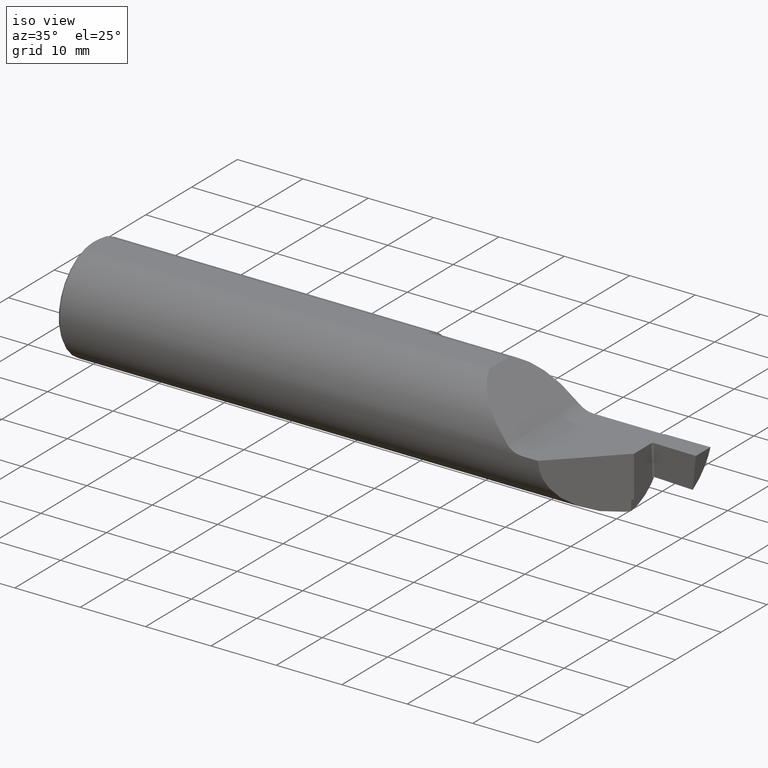
[diagram: clean part render]
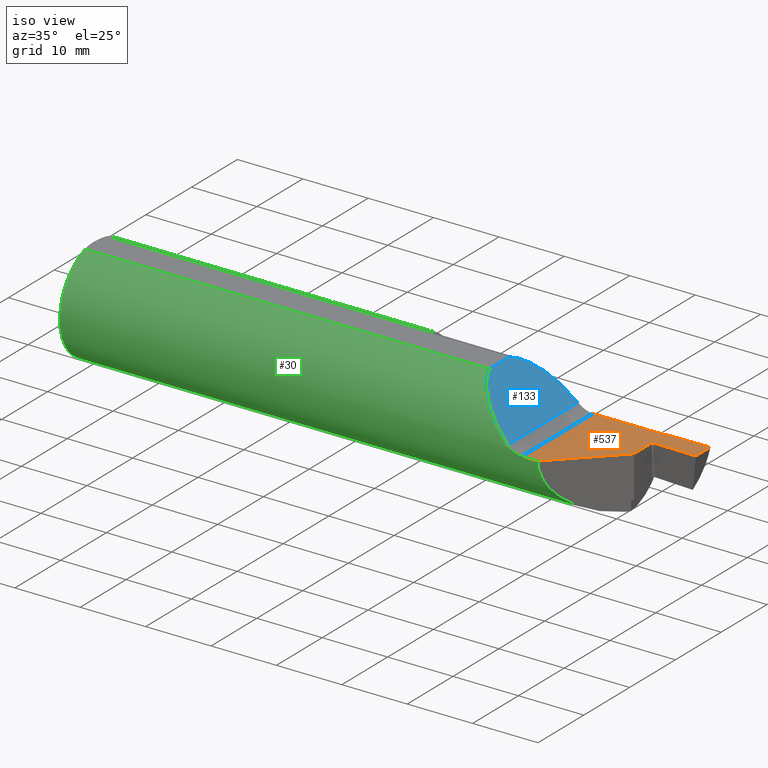
[diagram: same view with three faces highlighted in distinct colors, each labeled with its STEP entity id]
A machine part, iso view with three faces highlighted in distinct colors.
Their STEP definitions:

[orange] entity #537 — the highlighted planar face has unit normal (0, 0, -1).
#10 = ORIENTED_EDGE ( 'NONE', *, *, #858, .T. ) ;
#14 = VECTOR ( 'NONE', #387, 39.37007874015748143 ) ;
#18 = LINE ( 'NONE', #226, #360 ) ;
#34 = ORIENTED_EDGE ( 'NONE', *, *, #381, .T. ) ;
#43 = VECTOR ( 'NONE', #656, 39.37007874015748143 ) ;
#46 = LINE ( 'NONE', #287, #151 ) ;
#69 = VERTEX_POINT ( 'NONE', #105 ) ;
#105 = CARTESIAN_POINT ( 'NONE',  ( 2.799776695296631868, -0.3123499999999999610, 0.000000000000000000 ) ) ;
#114 = DIRECTION ( 'NONE',  ( -1.000000000000000000, 0.000000000000000000, -0.000000000000000000 ) ) ;
#122 = DIRECTION ( 'NONE',  ( -1.000000000000000000, -0.000000000000000000, -0.000000000000000000 ) ) ;
#151 = VECTOR ( 'NONE', #837, 39.37007874015748143 ) ;
#185 = VERTEX_POINT ( 'NONE', #780 ) ;
#191 = CARTESIAN_POINT ( 'NONE',  ( 3.245000000000000107, 0.1757987566360347254, 0.000000000000000000 ) ) ;
#205 = EDGE_CURVE ( 'NONE', #538, #441, #300, .T. ) ;
#224 = ORIENTED_EDGE ( 'NONE', *, *, #430, .T. ) ;
#226 = CARTESIAN_POINT ( 'NONE',  ( 2.772499999999999076, -0.4348499999999991261, 0.000000000000000000 ) ) ;
#243 = LINE ( 'NONE', #373, #14 ) ;
#263 = CARTESIAN_POINT ( 'NONE',  ( 1.960000000000000409, 0.2973492383597805544, 0.000000000000000000 ) ) ;
#267 = VERTEX_POINT ( 'NONE', #920 ) ;
#274 = LINE ( 'NONE', #787, #771 ) ;
#287 = CARTESIAN_POINT ( 'NONE',  ( 3.234999999999999876, -0.4123500000000000498, 0.000000000000000000 ) ) ;
#300 = CIRCLE ( 'NONE', #801, 0.008000000000000024453 ) ;
#321 = LINE ( 'NONE', #760, #886 ) ;
#326 = DIRECTION ( 'NONE',  ( 0.000000000000000000, 0.000000000000000000, -1.000000000000000000 ) ) ;
#341 = CARTESIAN_POINT ( 'NONE',  ( 2.750000000000000000, -0.4123500000000000498, 0.000000000000000000 ) ) ;
#347 = DIRECTION ( 'NONE',  ( -1.000000000000000000, 0.000000000000000000, 0.000000000000000000 ) ) ;
#352 = CARTESIAN_POINT ( 'NONE',  ( 2.799776695296631868, 0.2973492383597806654, -1.707404996040164512E-17 ) ) ;
#360 = VECTOR ( 'NONE', #510, 39.37007874015748854 ) ;
#371 = CIRCLE ( 'NONE', #456, 0.01000000000000016674 ) ;
#373 = CARTESIAN_POINT ( 'NONE',  ( 3.500000000000000000, -0.4123500000000000498, 0.000000000000000000 ) ) ;
#376 = VERTEX_POINT ( 'NONE', #586 ) ;
#378 = EDGE_CURVE ( 'NONE', #621, #69, #874, .T. ) ;
#381 = EDGE_CURVE ( 'NONE', #663, #376, #18, .T. ) ;
#387 = DIRECTION ( 'NONE',  ( 0.000000000000000000, 1.000000000000000000, 0.000000000000000000 ) ) ;
#402 = FACE_OUTER_BOUND ( 'NONE', #683, .T. ) ;
#414 = DIRECTION ( 'NONE',  ( -1.000000000000000000, 8.537024980200796575E-15, 0.000000000000000000 ) ) ;
#430 = EDGE_CURVE ( 'NONE', #501, #185, #243, .T. ) ;
#441 = VERTEX_POINT ( 'NONE', #451 ) ;
#451 = CARTESIAN_POINT ( 'NONE',  ( 3.229522971668060460, 0.3026280442686590799, 2.048885995248197414E-16 ) ) ;
#453 = LINE ( 'NONE', #515, #43 ) ;
#456 = AXIS2_PLACEMENT_3D ( 'NONE', #191, #852, #347 ) ;
#459 = CARTESIAN_POINT ( 'NONE',  ( 3.500000000000000444, 0.1813492383597804791, 0.000000000000000000 ) ) ;
#485 = ORIENTED_EDGE ( 'NONE', *, *, #205, .F. ) ;
#501 = VERTEX_POINT ( 'NONE', #459 ) ;
#502 = VECTOR ( 'NONE', #897, 39.37007874015748143 ) ;
#510 = DIRECTION ( 'NONE',  ( 0.7071067811865487940, 0.7071067811865461294, 0.000000000000000000 ) ) ;
#515 = CARTESIAN_POINT ( 'NONE',  ( 3.780044616675974911, 0.3122374353266534897, 1.707404996040164512E-17 ) ) ;
#521 = DIRECTION ( 'NONE',  ( 0.000000000000000000, -1.000000000000000000, 0.000000000000000000 ) ) ;
#537 = ADVANCED_FACE ( 'NONE', ( #402 ), #685, .F. ) ;
#538 = VERTEX_POINT ( 'NONE', #889 ) ;
#539 = DIRECTION ( 'NONE',  ( 0.9998476951563912696, -0.01745240643727517804, 0.000000000000000000 ) ) ;
#569 = EDGE_CURVE ( 'NONE', #621, #538, #615, .T. ) ;
#582 = CARTESIAN_POINT ( 'NONE',  ( 2.799776695296631868, -0.4123500000000000498, 0.000000000000000000 ) ) ;
#586 = CARTESIAN_POINT ( 'NONE',  ( 3.234999999999999876, 0.02765000000000004607, 0.000000000000000000 ) ) ;
#590 = CARTESIAN_POINT ( 'NONE',  ( 3.245174524064372790, 0.1857972335875986702, -1.814117808292674871E-17 ) ) ;
#615 = LINE ( 'NONE', #263, #502 ) ;
#621 = VERTEX_POINT ( 'NONE', #352 ) ;
#656 = DIRECTION ( 'NONE',  ( 0.9998476951563914916, 0.01745240643726934937, 0.000000000000000000 ) ) ;
#662 = EDGE_CURVE ( 'NONE', #267, #826, #371, .T. ) ;
#663 = VERTEX_POINT ( 'NONE', #842 ) ;
#672 = EDGE_CURVE ( 'NONE', #376, #267, #46, .T. ) ;
#675 = EDGE_CURVE ( 'NONE', #663, #69, #274, .T. ) ;
#679 = AXIS2_PLACEMENT_3D ( 'NONE', #341, #326, #114 ) ;
#683 = EDGE_LOOP ( 'NONE', ( #485, #839, #712, #786, #34, #707, #834, #10, #224, #899 ) ) ;
#685 = PLANE ( 'NONE',  #679 ) ;
#707 = ORIENTED_EDGE ( 'NONE', *, *, #672, .T. ) ;
#712 = ORIENTED_EDGE ( 'NONE', *, *, #378, .T. ) ;
#760 = CARTESIAN_POINT ( 'NONE',  ( 2.760588342173541321, 0.1942557168558162461, 0.000000000000000000 ) ) ;
#771 = VECTOR ( 'NONE', #122, 39.37007874015748143 ) ;
#773 = CARTESIAN_POINT ( 'NONE',  ( 3.221999999999999531, 0.3053492383597806725, 0.000000000000000000 ) ) ;
#780 = CARTESIAN_POINT ( 'NONE',  ( 3.500000000000000000, 0.3073492383597807298, 9.134616728814879582E-16 ) ) ;
#786 = ORIENTED_EDGE ( 'NONE', *, *, #675, .F. ) ;
#787 = CARTESIAN_POINT ( 'NONE',  ( 0.000000000000000000, -0.3123499999999999610, 0.000000000000000000 ) ) ;
#801 = AXIS2_PLACEMENT_3D ( 'NONE', #773, #844, #414 ) ;
#826 = VERTEX_POINT ( 'NONE', #590 ) ;
#828 = EDGE_CURVE ( 'NONE', #441, #185, #453, .T. ) ;
#834 = ORIENTED_EDGE ( 'NONE', *, *, #662, .T. ) ;
#837 = DIRECTION ( 'NONE',  ( 0.000000000000000000, 1.000000000000000000, 0.000000000000000000 ) ) ;
#839 = ORIENTED_EDGE ( 'NONE', *, *, #569, .F. ) ;
#842 = CARTESIAN_POINT ( 'NONE',  ( 2.894999999999998685, -0.3123499999999999610, 0.000000000000000000 ) ) ;
#844 = DIRECTION ( 'NONE',  ( -0.000000000000000000, -0.000000000000000000, 1.000000000000000000 ) ) ;
#852 = DIRECTION ( 'NONE',  ( 0.000000000000000000, 0.000000000000000000, -1.000000000000000000 ) ) ;
#858 = EDGE_CURVE ( 'NONE', #826, #501, #321, .T. ) ;
#874 = LINE ( 'NONE', #582, #917 ) ;
#886 = VECTOR ( 'NONE', #539, 39.37007874015748854 ) ;
#889 = CARTESIAN_POINT ( 'NONE',  ( 3.221999999999999531, 0.2973492383597806099, 0.000000000000000000 ) ) ;
#897 = DIRECTION ( 'NONE',  ( 1.000000000000000000, 0.000000000000000000, 0.000000000000000000 ) ) ;
#899 = ORIENTED_EDGE ( 'NONE', *, *, #828, .F. ) ;
#917 = VECTOR ( 'NONE', #521, 39.37007874015748143 ) ;
#920 = CARTESIAN_POINT ( 'NONE',  ( 3.234999999999999876, 0.1757987566360347254, 0.000000000000000000 ) ) ;

[blue] entity #133 — the highlighted planar face has unit normal (0.7071, -0, 0.7071).
#11 = VERTEX_POINT ( 'NONE', #580 ) ;
#17 = LINE ( 'NONE', #331, #753 ) ;
#41 = FACE_OUTER_BOUND ( 'NONE', #809, .T. ) ;
#126 = CARTESIAN_POINT ( 'NONE',  ( 2.449649999999997885, -0.09246512856206932918, 0.2983500000000000041 ) ) ;
#133 = ADVANCED_FACE ( 'NONE', ( #41 ), #328, .T. ) ;
#180 = ORIENTED_EDGE ( 'NONE', *, *, #843, .T. ) ;
#210 = VERTEX_POINT ( 'NONE', #555 ) ;
#258 = DIRECTION ( 'NONE',  ( -0.000000000000000000, 1.000000000000000000, -0.000000000000000000 ) ) ;
#276 = ORIENTED_EDGE ( 'NONE', *, *, #906, .T. ) ;
#278 =( BOUNDED_CURVE ( )  B_SPLINE_CURVE ( 3, ( #669, #817, #467, #896 ),
 .UNSPECIFIED., .F., .T. ) 
 B_SPLINE_CURVE_WITH_KNOTS ( ( 4, 4 ),
 ( 4.829815950483568265, 5.981106177898003473 ),
 .UNSPECIFIED. ) 
 CURVE ( )  GEOMETRIC_REPRESENTATION_ITEM ( )  RATIONAL_B_SPLINE_CURVE ( ( 1.000000000000000000, 0.8925608616953475405, 0.8925608616953475405, 1.000000000000000000 ) ) 
 REPRESENTATION_ITEM ( '' )  );
#286 = AXIS2_PLACEMENT_3D ( 'NONE', #902, #608, #820 ) ;
#293 = VERTEX_POINT ( 'NONE', #492 ) ;
#312 = ORIENTED_EDGE ( 'NONE', *, *, #648, .F. ) ;
#328 = PLANE ( 'NONE',  #286 ) ;
#331 = CARTESIAN_POINT ( 'NONE',  ( 2.711388347648313157, 0.4123500000000000498, 0.03661165235168205301 ) ) ;
#420 = ORIENTED_EDGE ( 'NONE', *, *, #581, .F. ) ;
#467 = CARTESIAN_POINT ( 'NONE',  ( 2.487452056093010455, 0.1991296308314487729, 0.2605479439069872671 ) ) ;
#475 = LINE ( 'NONE', #478, #545 ) ;
#478 = CARTESIAN_POINT ( 'NONE',  ( 2.449649999999997885, 0.09246512856206932918, 0.2983500000000000041 ) ) ;
#482 = DIRECTION ( 'NONE',  ( -0.000000000000000000, 1.000000000000000000, 0.000000000000000000 ) ) ;
#492 = CARTESIAN_POINT ( 'NONE',  ( 2.711388347648312713, 0.2951971671624062377, 0.03661165235168226811 ) ) ;
#503 =( BOUNDED_CURVE ( )  B_SPLINE_CURVE ( 3, ( #848, #632, #643, #126 ),
 .UNSPECIFIED., .F., .T. ) 
 B_SPLINE_CURVE_WITH_KNOTS ( ( 4, 4 ),
 ( 4.829872603322638902, 5.982651106322981249 ),
 .UNSPECIFIED. ) 
 CURVE ( )  GEOMETRIC_REPRESENTATION_ITEM ( )  RATIONAL_B_SPLINE_CURVE ( ( 1.000000000000000000, 0.8922906463574401537, 0.8922906463574401537, 1.000000000000000000 ) ) 
 REPRESENTATION_ITEM ( '' )  );
#545 = VECTOR ( 'NONE', #482, 39.37007874015748143 ) ;
#555 = CARTESIAN_POINT ( 'NONE',  ( 2.449649999999997885, 0.07781981166122887983, 0.2983500000000000041 ) ) ;
#580 = CARTESIAN_POINT ( 'NONE',  ( 2.711388347648313157, -0.3101968881405479106, 0.03661165235168183096 ) ) ;
#581 = EDGE_CURVE ( 'NONE', #609, #210, #475, .T. ) ;
#608 = DIRECTION ( 'NONE',  ( 0.7071067811865511255, -0.000000000000000000, 0.7071067811865439090 ) ) ;
#609 = VERTEX_POINT ( 'NONE', #782 ) ;
#632 = CARTESIAN_POINT ( 'NONE',  ( 2.585078726976065333, -0.2952889245292886766, 0.1629212730239304185 ) ) ;
#643 = CARTESIAN_POINT ( 'NONE',  ( 2.487301039583585283, -0.2139507938550457289, 0.2606989604164116070 ) ) ;
#648 = EDGE_CURVE ( 'NONE', #11, #609, #503, .T. ) ;
#669 = CARTESIAN_POINT ( 'NONE',  ( 2.711388347648312713, 0.2951971671624062377, 0.03661165235168226811 ) ) ;
#753 = VECTOR ( 'NONE', #258, 39.37007874015748143 ) ;
#782 = CARTESIAN_POINT ( 'NONE',  ( 2.449649999999997885, -0.09246512856206932918, 0.2983500000000000041 ) ) ;
#809 = EDGE_LOOP ( 'NONE', ( #276, #180, #420, #312 ) ) ;
#817 = CARTESIAN_POINT ( 'NONE',  ( 2.585200142108180721, 0.2803107822912631053, 0.1627998578918156414 ) ) ;
#820 = DIRECTION ( 'NONE',  ( 0.7071067811865439090, 0.000000000000000000, -0.7071067811865511255 ) ) ;
#843 = EDGE_CURVE ( 'NONE', #293, #210, #278, .T. ) ;
#848 = CARTESIAN_POINT ( 'NONE',  ( 2.711388347648313157, -0.3101968881405479106, 0.03661165235168183096 ) ) ;
#896 = CARTESIAN_POINT ( 'NONE',  ( 2.449649999999997885, 0.07781981166122887983, 0.2983500000000000041 ) ) ;
#902 = CARTESIAN_POINT ( 'NONE',  ( 2.750000000000000000, 0.4123500000000000498, -0.002000000000005264927 ) ) ;
#906 = EDGE_CURVE ( 'NONE', #11, #293, #17, .T. ) ;

[green] entity #30 — the highlighted cylindrical surface (partial cylindrical patch) has radius 7.9337 mm, axis along (-1, -0, -0).
#4 = CARTESIAN_POINT ( 'NONE',  ( 0.01499999999999587948, -0.09246512856207692033, 0.2983500000000000041 ) ) ;
#11 = VERTEX_POINT ( 'NONE', #580 ) ;
#15 = VERTEX_POINT ( 'NONE', #234 ) ;
#16 = CIRCLE ( 'NONE', #153, 0.3123500000000000165 ) ;
#30 = ADVANCED_FACE ( 'NONE', ( #154 ), #87, .T. ) ;
#40 = CARTESIAN_POINT ( 'NONE',  ( 1.960368899908756068, 0.1101505059355021715, -0.2926523065932738477 ) ) ;
#56 = CARTESIAN_POINT ( 'NONE',  ( 1.960000000000000409, 0.1408597388205671819, 0.2799495959404788570 ) ) ;
#63 = DIRECTION ( 'NONE',  ( 1.000000000000000000, 0.000000000000000000, 0.000000000000000000 ) ) ;
#68 = CARTESIAN_POINT ( 'NONE',  ( 2.894999999999998685, -0.3123499999999999610, 0.000000000000000000 ) ) ;
#69 = VERTEX_POINT ( 'NONE', #105 ) ;
#83 = CARTESIAN_POINT ( 'NONE',  ( 1.966409111413173871, -0.001273356502921675019, -0.3123486698802878103 ) ) ;
#87 = CYLINDRICAL_SURFACE ( 'NONE', #695, 0.3123500000000000165 ) ;
#89 = CARTESIAN_POINT ( 'NONE',  ( 1.966216365614061878, -0.0003701974552680141581, -0.3123510986899081798 ) ) ;
#94 = CARTESIAN_POINT ( 'NONE',  ( 1.960609346587106394, 0.09615431653023193137, -0.2975417998640902950 ) ) ;
#102 = CARTESIAN_POINT ( 'NONE',  ( 2.759502396207997421, -0.3123005131455937611, 0.006382863975782117338 ) ) ;
#105 = CARTESIAN_POINT ( 'NONE',  ( 2.799776695296631868, -0.3123499999999999610, 0.000000000000000000 ) ) ;
#110 = CARTESIAN_POINT ( 'NONE',  ( 1.963427599574049998, 0.02437431679596222672, -0.3114844585720413783 ) ) ;
#111 = DIRECTION ( 'NONE',  ( -1.000000000000000000, -0.000000000000000000, -0.000000000000000000 ) ) ;
#113 = CARTESIAN_POINT ( 'NONE',  ( 2.791522665335699482, -0.3123499999999999055, 1.500648922300925238E-19 ) ) ;
#122 = DIRECTION ( 'NONE',  ( -1.000000000000000000, -0.000000000000000000, -0.000000000000000000 ) ) ;
#126 = CARTESIAN_POINT ( 'NONE',  ( 2.449649999999997885, -0.09246512856206932918, 0.2983500000000000041 ) ) ;
#132 = DIRECTION ( 'NONE',  ( 1.000000000000000000, 0.000000000000000000, 0.000000000000000000 ) ) ;
#143 = CARTESIAN_POINT ( 'NONE',  ( 1.965429668006681618, 0.004185134267808203641, -0.3123273330972310413 ) ) ;
#145 = EDGE_CURVE ( 'NONE', #609, #449, #179, .T. ) ;
#153 = AXIS2_PLACEMENT_3D ( 'NONE', #711, #63, #238 ) ;
#154 = FACE_OUTER_BOUND ( 'NONE', #374, .T. ) ;
#158 = DIRECTION ( 'NONE',  ( 0.000000000000000000, 0.000000000000000000, 1.000000000000000000 ) ) ;
#161 = CARTESIAN_POINT ( 'NONE',  ( 1.967582275049901019, -0.004280569045032564177, -0.3123207262714674526 ) ) ;
#162 = ORIENTED_EDGE ( 'NONE', *, *, #481, .F. ) ;
#168 = ORIENTED_EDGE ( 'NONE', *, *, #921, .T. ) ;
#174 = EDGE_CURVE ( 'NONE', #493, #663, #208, .T. ) ;
#179 = LINE ( 'NONE', #270, #757 ) ;
#186 = CIRCLE ( 'NONE', #831, 0.3123500000000000165 ) ;
#187 = CARTESIAN_POINT ( 'NONE',  ( 2.783406291026808255, -0.3123529779476911239, 0.0008095237780517812410 ) ) ;
#193 = CARTESIAN_POINT ( 'NONE',  ( 3.202867780508205087, -0.004482219491794302291, -0.3123178384409499575 ) ) ;
#208 =( BOUNDED_CURVE ( )  B_SPLINE_CURVE ( 3, ( #193, #323, #600, #68 ),
 .UNSPECIFIED., .F., .T. ) 
 B_SPLINE_CURVE_WITH_KNOTS ( ( 4, 4 ),
 ( 4.726739463296439681, 6.283185307179586232 ),
 .UNSPECIFIED. ) 
 CURVE ( )  GEOMETRIC_REPRESENTATION_ITEM ( )  RATIONAL_B_SPLINE_CURVE ( ( 1.000000000000000000, 0.8081081314965419260, 0.8081081314965419260, 1.000000000000000000 ) ) 
 REPRESENTATION_ITEM ( '' )  );
#209 = CARTESIAN_POINT ( 'NONE',  ( 0.000000000000000000, 0.09246512856206932918, 0.2983500000000000041 ) ) ;
#234 = CARTESIAN_POINT ( 'NONE',  ( 1.968000000000000416, -0.004482219491799574983, -0.3123178384409500685 ) ) ;
#238 = DIRECTION ( 'NONE',  ( 0.000000000000000000, 0.000000000000000000, -1.000000000000000000 ) ) ;
#247 = CARTESIAN_POINT ( 'NONE',  ( 1.961830507054226791, 0.05356421249217874214, -0.3080725500969381248 ) ) ;
#270 = CARTESIAN_POINT ( 'NONE',  ( 0.000000000000000000, -0.09246512856206932918, 0.2983500000000000041 ) ) ;
#274 = LINE ( 'NONE', #787, #771 ) ;
#284 = EDGE_CURVE ( 'NONE', #589, #477, #861, .T. ) ;
#289 = ORIENTED_EDGE ( 'NONE', *, *, #648, .T. ) ;
#294 = VERTEX_POINT ( 'NONE', #856 ) ;
#305 = CARTESIAN_POINT ( 'NONE',  ( 1.960728097748990928, 0.09246512856206982878, 0.2983499999999997820 ) ) ;
#309 = EDGE_CURVE ( 'NONE', #354, #477, #835, .T. ) ;
#315 = CARTESIAN_POINT ( 'NONE',  ( 1.967313356345119502, -0.003896778605827549632, -0.3123257505339309126 ) ) ;
#318 = CARTESIAN_POINT ( 'NONE',  ( 2.737198267252211270, -0.3119476854304215618, 0.01648500144479711146 ) ) ;
#319 = CARTESIAN_POINT ( 'NONE',  ( 1.965693869291541995, 0.002352038502179883053, -0.3123464166765421157 ) ) ;
#322 = EDGE_CURVE ( 'NONE', #522, #589, #850, .T. ) ;
#323 = CARTESIAN_POINT ( 'NONE',  ( 3.021991165542026181, -0.1853588344579733260, -0.3097219934733420055 ) ) ;
#325 = B_SPLINE_CURVE_WITH_KNOTS ( 'NONE', 3,
 ( #369, #661, #161, #315, #592, #806, #736, #83, #89, #319, #143, #436, #579, #110, #740, #247, #457, #94, #40, #605, #546, #393 ),
 .UNSPECIFIED., .F., .F.,
 ( 4, 2, 2, 2, 2, 2, 2, 2, 2, 2, 4 ),
 ( 1.970594229852846459E-07, 1.803909044337599873E-05, 3.588112146376670866E-05, 7.156518350454814208E-05, 0.0001429333075861110225, 0.0002856695557492367832, 0.0005711420520754855942, 0.001142087044727985602, 0.002283977030032986050, 0.003425867015337986064, 0.004567757000642986079 ),
 .UNSPECIFIED. ) ;
#338 = EDGE_CURVE ( 'NONE', #294, #354, #16, .T. ) ;
#354 = VERTEX_POINT ( 'NONE', #379 ) ;
#357 = CARTESIAN_POINT ( 'NONE',  ( 1.960187379179326728, 0.1171499089251766407, 0.2906996517855017781 ) ) ;
#364 = ORIENTED_EDGE ( 'NONE', *, *, #309, .F. ) ;
#366 = CARTESIAN_POINT ( 'NONE',  ( 1.960000000000000409, 0.1626380916929897891, 0.2666671588899965362 ) ) ;
#369 = CARTESIAN_POINT ( 'NONE',  ( 1.968000000000000416, -0.004482219491799574983, -0.3123178384409500685 ) ) ;
#374 = EDGE_LOOP ( 'NONE', ( #625, #556, #802, #168, #289, #497, #752, #518, #571, #364, #726, #162 ) ) ;
#379 = CARTESIAN_POINT ( 'NONE',  ( 1.960000000000000409, 0.1626380916929897891, 0.2666671588899965362 ) ) ;
#393 = CARTESIAN_POINT ( 'NONE',  ( 1.960000000000000409, 0.1626380916929897891, -0.2666671588899965362 ) ) ;
#419 = EDGE_CURVE ( 'NONE', #449, #522, #186, .T. ) ;
#426 = DIRECTION ( 'NONE',  ( 0.000000000000000000, 0.000000000000000000, -1.000000000000000000 ) ) ;
#431 = DIRECTION ( 'NONE',  ( 1.000000000000000000, 0.000000000000000000, 0.000000000000000000 ) ) ;
#436 = CARTESIAN_POINT ( 'NONE',  ( 1.964719845097705253, 0.009679807099238829302, -0.3122214714403780400 ) ) ;
#446 = CARTESIAN_POINT ( 'NONE',  ( 0.01500000000000052333, 0.000000000000000000, 0.000000000000000000 ) ) ;
#449 = VERTEX_POINT ( 'NONE', #4 ) ;
#454 = DIRECTION ( 'NONE',  ( 1.000000000000000000, 0.000000000000000000, 0.000000000000000000 ) ) ;
#457 = CARTESIAN_POINT ( 'NONE',  ( 1.961347162358179741, 0.06790716442675048814, -0.3052300644977108401 ) ) ;
#477 = VERTEX_POINT ( 'NONE', #305 ) ;
#481 = EDGE_CURVE ( 'NONE', #15, #294, #325, .T. ) ;
#493 = VERTEX_POINT ( 'NONE', #823 ) ;
#497 = ORIENTED_EDGE ( 'NONE', *, *, #145, .T. ) ;
#500 = EDGE_CURVE ( 'NONE', #493, #15, #541, .T. ) ;
#503 =( BOUNDED_CURVE ( )  B_SPLINE_CURVE ( 3, ( #848, #632, #643, #126 ),
 .UNSPECIFIED., .F., .T. ) 
 B_SPLINE_CURVE_WITH_KNOTS ( ( 4, 4 ),
 ( 4.829872603322638902, 5.982651106322981249 ),
 .UNSPECIFIED. ) 
 CURVE ( )  GEOMETRIC_REPRESENTATION_ITEM ( )  RATIONAL_B_SPLINE_CURVE ( ( 1.000000000000000000, 0.8922906463574401537, 0.8922906463574401537, 1.000000000000000000 ) ) 
 REPRESENTATION_ITEM ( '' )  );
#518 = ORIENTED_EDGE ( 'NONE', *, *, #322, .T. ) ;
#520 = VECTOR ( 'NONE', #431, 39.37007874015748143 ) ;
#522 = VERTEX_POINT ( 'NONE', #830 ) ;
#526 = CARTESIAN_POINT ( 'NONE',  ( 2.711388347648313157, -0.3101968881405479106, 0.03661165235168183096 ) ) ;
#532 = CARTESIAN_POINT ( 'NONE',  ( 2.595000000000000195, -0.004482219491797726635, -0.3123178384409499575 ) ) ;
#541 = LINE ( 'NONE', #532, #810 ) ;
#546 = CARTESIAN_POINT ( 'NONE',  ( 1.960000000000000409, 0.1501376569286136109, -0.2742910705252852854 ) ) ;
#556 = ORIENTED_EDGE ( 'NONE', *, *, #174, .T. ) ;
#562 = AXIS2_PLACEMENT_3D ( 'NONE', #783, #132, #426 ) ;
#571 = ORIENTED_EDGE ( 'NONE', *, *, #284, .T. ) ;
#579 = CARTESIAN_POINT ( 'NONE',  ( 1.964366784501071495, 0.01335244570052913221, -0.3120861625923382343 ) ) ;
#580 = CARTESIAN_POINT ( 'NONE',  ( 2.711388347648313157, -0.3101968881405479106, 0.03661165235168183096 ) ) ;
#589 = VERTEX_POINT ( 'NONE', #699 ) ;
#592 = CARTESIAN_POINT ( 'NONE',  ( 1.967211019143644046, -0.003689047498845545586, -0.3123282865089277993 ) ) ;
#594 = CARTESIAN_POINT ( 'NONE',  ( 2.723623800555937446, -0.3113371557985921134, 0.02553995178686549114 ) ) ;
#596 = CARTESIAN_POINT ( 'NONE',  ( 0.000000000000000000, 0.000000000000000000, 0.000000000000000000 ) ) ;
#600 = CARTESIAN_POINT ( 'NONE',  ( 2.894999999999998685, -0.3123500000000000165, -0.1808952411002544558 ) ) ;
#601 = CARTESIAN_POINT ( 'NONE',  ( 2.744373049089623429, -0.3121094746894236827, 0.01265018863995691530 ) ) ;
#605 = CARTESIAN_POINT ( 'NONE',  ( 1.960064105020415504, 0.1371422438581685610, -0.2810169237995415181 ) ) ;
#609 = VERTEX_POINT ( 'NONE', #782 ) ;
#625 = ORIENTED_EDGE ( 'NONE', *, *, #500, .F. ) ;
#632 = CARTESIAN_POINT ( 'NONE',  ( 2.585078726976065333, -0.2952889245292886766, 0.1629212730239304185 ) ) ;
#634 = CARTESIAN_POINT ( 'NONE',  ( 1.960728097748990928, 0.09246512856206982878, 0.2983499999999997820 ) ) ;
#643 = CARTESIAN_POINT ( 'NONE',  ( 2.487301039583585283, -0.2139507938550457289, 0.2606989604164116070 ) ) ;
#648 = EDGE_CURVE ( 'NONE', #11, #609, #503, .T. ) ;
#661 = CARTESIAN_POINT ( 'NONE',  ( 1.967762752467017151, -0.004482219491798915788, -0.3123178384409499575 ) ) ;
#663 = VERTEX_POINT ( 'NONE', #842 ) ;
#675 = EDGE_CURVE ( 'NONE', #663, #69, #274, .T. ) ;
#695 = AXIS2_PLACEMENT_3D ( 'NONE', #596, #879, #158 ) ;
#699 = CARTESIAN_POINT ( 'NONE',  ( 0.01500000000000052333, 0.09246512856206932918, 0.2983500000000000041 ) ) ;
#711 = CARTESIAN_POINT ( 'NONE',  ( 1.960000000000000409, 0.000000000000000000, 0.000000000000000000 ) ) ;
#726 = ORIENTED_EDGE ( 'NONE', *, *, #338, .F. ) ;
#736 = CARTESIAN_POINT ( 'NONE',  ( 1.966790529255113551, -0.002606986316049827307, -0.3123394367519735648 ) ) ;
#739 = CARTESIAN_POINT ( 'NONE',  ( 2.767437696019467985, -0.3123286490856566622, 0.003981597903693289385 ) ) ;
#740 = CARTESIAN_POINT ( 'NONE',  ( 1.962978368751124858, 0.03172692508847087950, -0.3108210889647209374 ) ) ;
#752 = ORIENTED_EDGE ( 'NONE', *, *, #419, .T. ) ;
#757 = VECTOR ( 'NONE', #111, 39.37007874015748143 ) ;
#763 = B_SPLINE_CURVE_WITH_KNOTS ( 'NONE', 3,
 ( #829, #113, #187, #739, #102, #601, #318, #594, #883, #526 ),
 .UNSPECIFIED., .F., .F.,
 ( 4, 2, 2, 2, 4 ),
 ( 0.000000000000000000, 0.0006200545602135924036, 0.001240109120427184807, 0.001860163680640777211, 0.002480218240854369614 ),
 .UNSPECIFIED. ) ;
#771 = VECTOR ( 'NONE', #122, 39.37007874015748143 ) ;
#782 = CARTESIAN_POINT ( 'NONE',  ( 2.449649999999997885, -0.09246512856206932918, 0.2983500000000000041 ) ) ;
#783 = CARTESIAN_POINT ( 'NONE',  ( 0.01500000000000052333, 0.000000000000000000, 0.000000000000000000 ) ) ;
#787 = CARTESIAN_POINT ( 'NONE',  ( 0.000000000000000000, -0.3123499999999999610, 0.000000000000000000 ) ) ;
#802 = ORIENTED_EDGE ( 'NONE', *, *, #675, .T. ) ;
#806 = CARTESIAN_POINT ( 'NONE',  ( 1.966932488357366005, -0.003051807244517923401, -0.3123353797966956225 ) ) ;
#810 = VECTOR ( 'NONE', #901, 39.37007874015748143 ) ;
#823 = CARTESIAN_POINT ( 'NONE',  ( 3.202867780508205087, -0.004482219491794302291, -0.3123178384409499575 ) ) ;
#829 = CARTESIAN_POINT ( 'NONE',  ( 2.799776695296631868, -0.3123499999999999610, 0.000000000000000000 ) ) ;
#830 = CARTESIAN_POINT ( 'NONE',  ( 0.01500000000000052333, 0.000000000000000000, -0.3123499999999999610 ) ) ;
#831 = AXIS2_PLACEMENT_3D ( 'NONE', #446, #454, #878 ) ;
#835 = B_SPLINE_CURVE_WITH_KNOTS ( 'NONE', 3,
 ( #366, #56, #357, #634 ),
 .UNSPECIFIED., .F., .F.,
 ( 4, 4 ),
 ( 0.006483673101505866773, 0.008452642523591418280 ),
 .UNSPECIFIED. ) ;
#842 = CARTESIAN_POINT ( 'NONE',  ( 2.894999999999998685, -0.3123499999999999610, 0.000000000000000000 ) ) ;
#848 = CARTESIAN_POINT ( 'NONE',  ( 2.711388347648313157, -0.3101968881405479106, 0.03661165235168183096 ) ) ;
#850 = CIRCLE ( 'NONE', #562, 0.3123500000000000165 ) ;
#856 = CARTESIAN_POINT ( 'NONE',  ( 1.960000000000000409, 0.1626380916929897891, -0.2666671588899965362 ) ) ;
#861 = LINE ( 'NONE', #209, #520 ) ;
#878 = DIRECTION ( 'NONE',  ( 0.000000000000000000, 0.000000000000000000, -1.000000000000000000 ) ) ;
#879 = DIRECTION ( 'NONE',  ( -1.000000000000000000, -0.000000000000000000, -0.000000000000000000 ) ) ;
#883 = CARTESIAN_POINT ( 'NONE',  ( 2.717205864027919304, -0.3108835129758812377, 0.03079413597207514286 ) ) ;
#901 = DIRECTION ( 'NONE',  ( -1.000000000000000000, -0.000000000000000000, -0.000000000000000000 ) ) ;
#921 = EDGE_CURVE ( 'NONE', #69, #11, #763, .T. ) ;